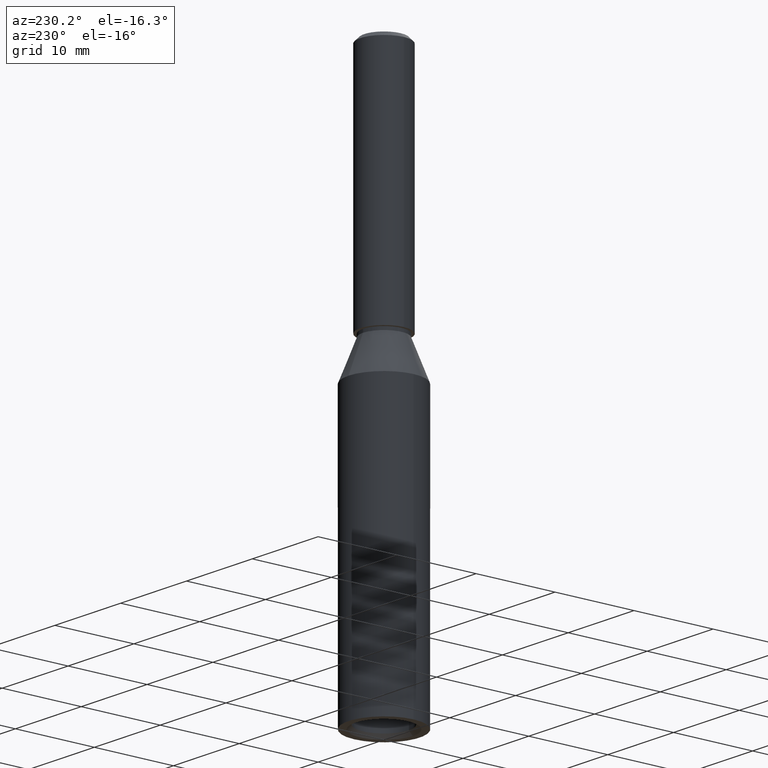
[diagram: clean part render]
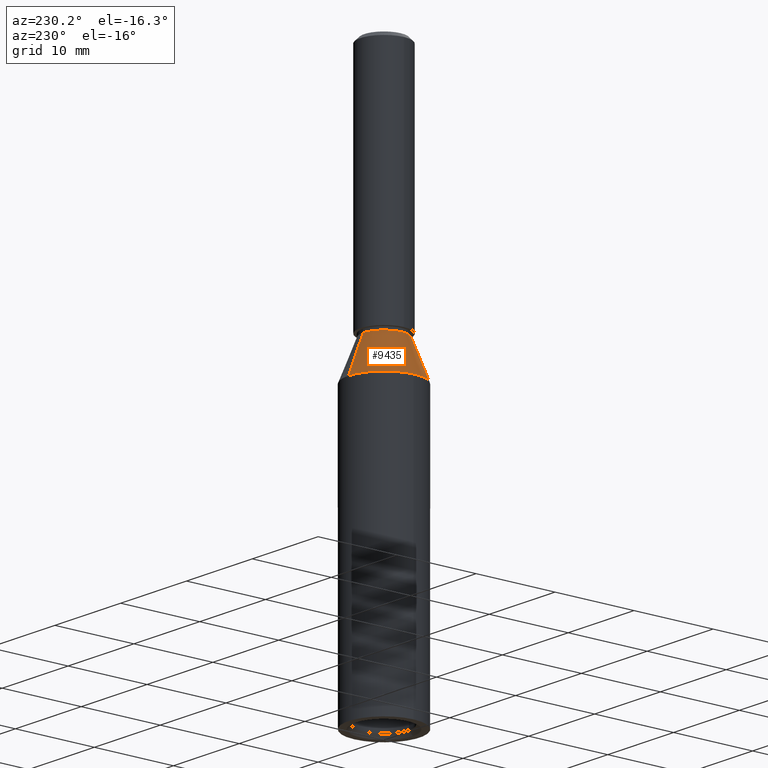
[diagram: same view with one face highlighted and labeled with its STEP entity id]
A machine part, auxiliary view. The second image highlights one B-rep face of the part: STEP entity #9435.
In plain terms, the highlighted conical surface has half-angle 21.485 deg.
Its self-contained STEP definition (entity closure, byte-faithful):
#418 = AXIS2_PLACEMENT_3D ( 'NONE', #12057, #7922, #12010 ) ;
#591 = CONICAL_SURFACE ( 'NONE', #9546, 4.500000000000004400, 0.3749917271333674800 ) ;
#1022 = CARTESIAN_POINT ( 'NONE',  ( 0.0000000000000000000, 2.650000000000007500, 39.70000000000001000 ) ) ;
#1150 = ORIENTED_EDGE ( 'NONE', *, *, #1245, .F. ) ;
#1245 = EDGE_CURVE ( 'NONE', #5743, #2675, #11182, .T. ) ;
#1470 = CARTESIAN_POINT ( 'NONE',  ( 0.0000000000000000000, 4.500000000000004400, 35.00000000000000000 ) ) ;
#1979 = VERTEX_POINT ( 'NONE', #3412 ) ;
#2082 = EDGE_CURVE ( 'NONE', #8967, #5743, #2268, .T. ) ;
#2268 = LINE ( 'NONE', #13228, #3595 ) ;
#2305 = ORIENTED_EDGE ( 'NONE', *, *, #2798, .F. ) ;
#2407 = DIRECTION ( 'NONE',  ( 0.0000000000000000000, 1.000000000000000000, 0.0000000000000000000 ) ) ;
#2670 = CARTESIAN_POINT ( 'NONE',  ( -4.500000000000004400, 7.222237291452134400E-032, 35.00000000000000000 ) ) ;
#2675 = VERTEX_POINT ( 'NONE', #2670 ) ;
#2798 = EDGE_CURVE ( 'NONE', #2675, #1979, #9990, .T. ) ;
#3412 = CARTESIAN_POINT ( 'NONE',  ( 0.0000000000000000000, 4.500000000000004400, 35.00000000000000000 ) ) ;
#3505 = DIRECTION ( 'NONE',  ( 0.0000000000000000000, 0.3662648311080571900, -0.9305106520042564200 ) ) ;
#3595 = VECTOR ( 'NONE', #11008, 999.9999999999998900 ) ;
#3634 = CARTESIAN_POINT ( 'NONE',  ( 0.0000000000000000000, -6.887097141624851200E-017, 35.00000000000000000 ) ) ;
#4575 = AXIS2_PLACEMENT_3D ( 'NONE', #3634, #12104, #5698 ) ;
#4621 = DIRECTION ( 'NONE',  ( -0.0000000000000000000, 1.967742040464242900E-018, -1.000000000000000000 ) ) ;
#5698 = DIRECTION ( 'NONE',  ( 0.0000000000000000000, 1.000000000000000000, 0.0000000000000000000 ) ) ;
#5724 = DIRECTION ( 'NONE',  ( 0.0000000000000000000, 1.000000000000000000, 0.0000000000000000000 ) ) ;
#5743 = VERTEX_POINT ( 'NONE', #9718 ) ;
#6522 = VECTOR ( 'NONE', #3505, 999.9999999999998900 ) ;
#7565 = ORIENTED_EDGE ( 'NONE', *, *, #13100, .T. ) ;
#7810 = DIRECTION ( 'NONE',  ( -0.0000000000000000000, 1.967742040464242900E-018, -1.000000000000000000 ) ) ;
#7842 = CARTESIAN_POINT ( 'NONE',  ( 0.0000000000000000000, -7.811935900643047100E-017, 39.70000000000001000 ) ) ;
#7922 = DIRECTION ( 'NONE',  ( -0.0000000000000000000, 1.967742040464242900E-018, -1.000000000000000000 ) ) ;
#8141 = AXIS2_PLACEMENT_3D ( 'NONE', #7842, #4621, #2407 ) ;
#8967 = VERTEX_POINT ( 'NONE', #10060 ) ;
#9435 = ADVANCED_FACE ( 'NONE', ( #11475 ), #591, .T. ) ;
#9546 = AXIS2_PLACEMENT_3D ( 'NONE', #13256, #7810, #5724 ) ;
#9718 = CARTESIAN_POINT ( 'NONE',  ( 5.510910596163095500E-016, -4.500000000000004400, 35.00000000000000000 ) ) ;
#9990 = CIRCLE ( 'NONE', #418, 4.500000000000004400 ) ;
#10060 = CARTESIAN_POINT ( 'NONE',  ( 3.245314017740495300E-016, -2.650000000000007500, 39.70000000000001000 ) ) ;
#10124 = ORIENTED_EDGE ( 'NONE', *, *, #11782, .T. ) ;
#11008 = DIRECTION ( 'NONE',  ( 4.485450530567281600E-017, -0.3662648311080571900, -0.9305106520042564200 ) ) ;
#11182 = CIRCLE ( 'NONE', #4575, 4.500000000000004400 ) ;
#11475 = FACE_OUTER_BOUND ( 'NONE', #11598, .T. ) ;
#11586 = VERTEX_POINT ( 'NONE', #1022 ) ;
#11598 = EDGE_LOOP ( 'NONE', ( #11738, #7565, #10124, #2305, #1150 ) ) ;
#11738 = ORIENTED_EDGE ( 'NONE', *, *, #2082, .F. ) ;
#11782 = EDGE_CURVE ( 'NONE', #11586, #1979, #12119, .T. ) ;
#12010 = DIRECTION ( 'NONE',  ( 0.0000000000000000000, 1.000000000000000000, 0.0000000000000000000 ) ) ;
#12057 = CARTESIAN_POINT ( 'NONE',  ( 0.0000000000000000000, -6.887097141624851200E-017, 35.00000000000000000 ) ) ;
#12104 = DIRECTION ( 'NONE',  ( -0.0000000000000000000, 1.967742040464242900E-018, -1.000000000000000000 ) ) ;
#12119 = LINE ( 'NONE', #1470, #6522 ) ;
#12300 = CIRCLE ( 'NONE', #8141, 2.650000000000007500 ) ;
#13100 = EDGE_CURVE ( 'NONE', #8967, #11586, #12300, .T. ) ;
#13228 = CARTESIAN_POINT ( 'NONE',  ( 5.510910596163095500E-016, -4.500000000000004400, 35.00000000000000000 ) ) ;
#13256 = CARTESIAN_POINT ( 'NONE',  ( 0.0000000000000000000, -6.887097141624851200E-017, 35.00000000000000000 ) ) ;